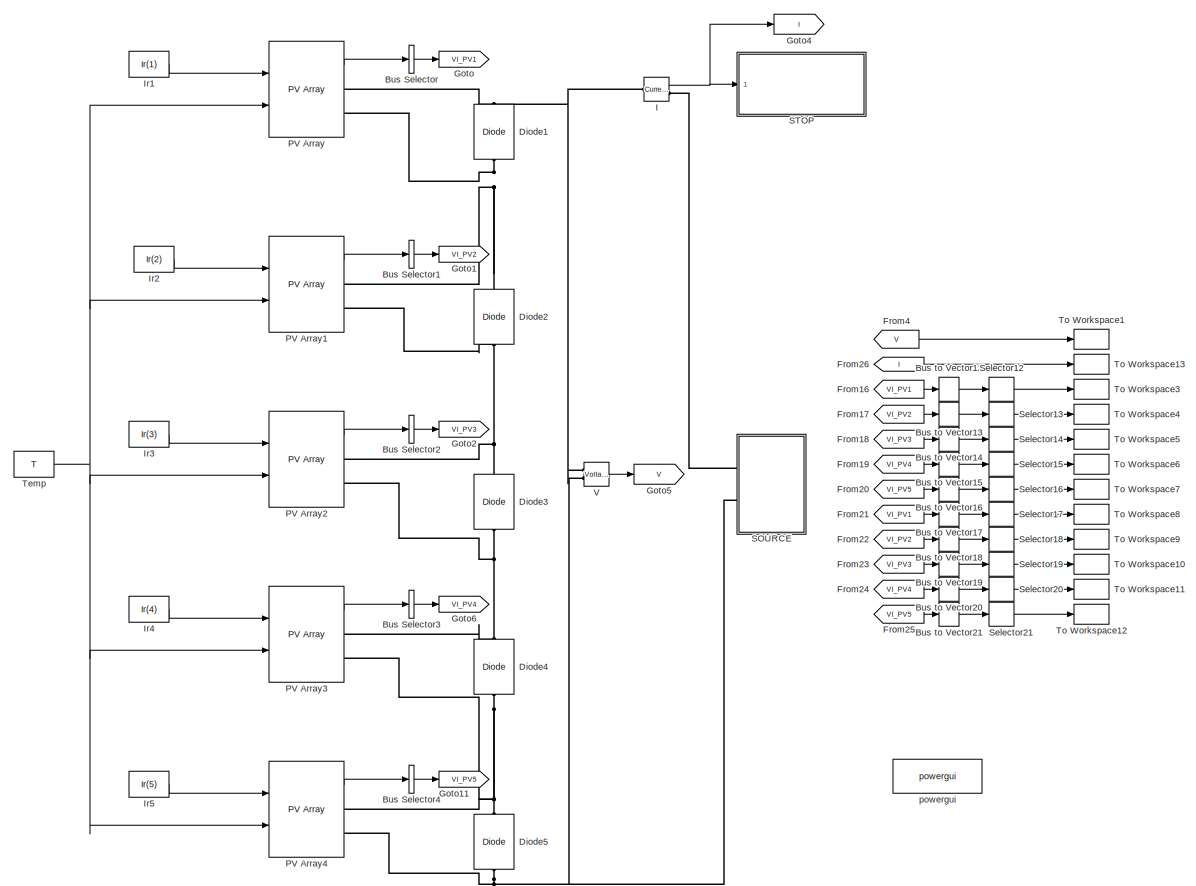
[diagram: root canvas - part 1/2, left side, full height]
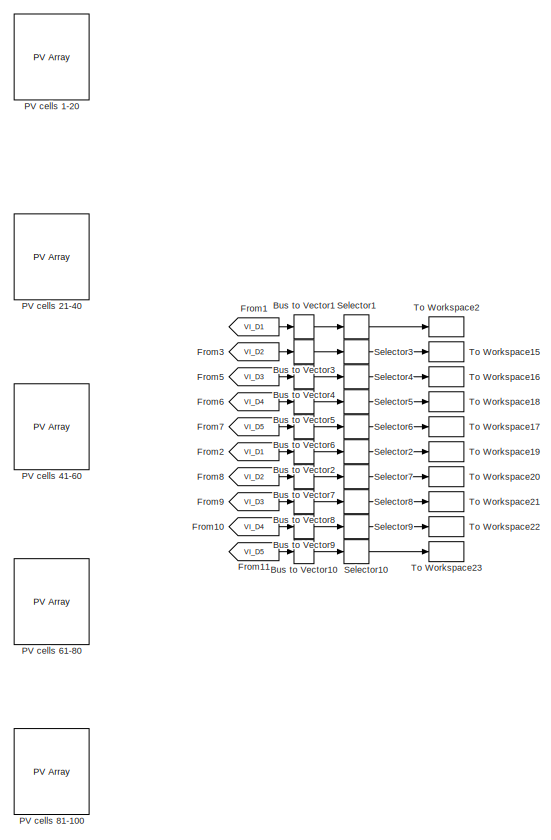
[diagram: root canvas - part 2/2, right side, full height]
MODEL slx_db8f63a1a757
KIND model
CONFIG AbsTol = auto
CONFIG EnableMultiTasking = off
CONFIG FixedStep = Ts_Power
CONFIG MaxStep = 1e-6
CONFIG MinStep = auto
CONFIG RelTol = 1e-4
CONFIG SampleTimeConstraint = Unconstrained
CONFIG SolverName = VariableStepAuto
CONFIG StartTime = 0.0
CONFIG StopFcn = VI_generator()
CONFIG StopTime = 50
BLOCK [BusSelector] Bus Selector
  NameLocation = top
  OutputAsBus = on
  OutputSignals = V_PV,I_PV
  Ports = [1, 1]
BLOCK [BusSelector] Bus Selector1
  OutputAsBus = on
  OutputSignals = V_PV,I_PV
  Ports = [1, 1]
BLOCK [BusSelector] Bus Selector2
  OutputAsBus = on
  OutputSignals = V_PV,I_PV
  Ports = [1, 1]
BLOCK [BusSelector] Bus Selector3
  OutputAsBus = on
  OutputSignals = V_PV,I_PV
  Ports = [1, 1]
BLOCK [BusSelector] Bus Selector4
  OutputAsBus = on
  OutputSignals = V_PV,I_PV
  Ports = [1, 1]
BLOCK [BusToVector] Bus to Vector1
  Commented = on
BLOCK [BusToVector] Bus to Vector10
  Commented = on
BLOCK [BusToVector] Bus to Vector12
BLOCK [BusToVector] Bus to Vector13
BLOCK [BusToVector] Bus to Vector14
BLOCK [BusToVector] Bus to Vector15
BLOCK [BusToVector] Bus to Vector16
BLOCK [BusToVector] Bus to Vector17
BLOCK [BusToVector] Bus to Vector18
BLOCK [BusToVector] Bus to Vector19
BLOCK [BusToVector] Bus to Vector2
  Commented = on
BLOCK [BusToVector] Bus to Vector20
BLOCK [BusToVector] Bus to Vector21
BLOCK [BusToVector] Bus to Vector3
  Commented = on
BLOCK [BusToVector] Bus to Vector4
  Commented = on
BLOCK [BusToVector] Bus to Vector5
  Commented = on
BLOCK [BusToVector] Bus to Vector6
  Commented = on
BLOCK [BusToVector] Bus to Vector7
  Commented = on
BLOCK [BusToVector] Bus to Vector8
  Commented = on
BLOCK [BusToVector] Bus to Vector9
  Commented = on
BLOCK [Reference] Diode1  REF=spsDiodeLib/Diode
  NameLocation = right
  Ports = [0, 0, 0, 0, 0, 1, 1]
  SourceBlock = spsDiodeLib/Diode
  SourceProductBaseCode = PS
  SourceType = Diode
BLOCK [Reference] Diode2  REF=spsDiodeLib/Diode
  NameLocation = right
  Ports = [0, 0, 0, 0, 0, 1, 1]
  SourceBlock = spsDiodeLib/Diode
  SourceProductBaseCode = PS
  SourceType = Diode
BLOCK [Reference] Diode3  REF=spsDiodeLib/Diode
  NameLocation = right
  Ports = [0, 0, 0, 0, 0, 1, 1]
  SourceBlock = spsDiodeLib/Diode
  SourceProductBaseCode = PS
  SourceType = Diode
BLOCK [Reference] Diode4  REF=spsDiodeLib/Diode
  NameLocation = right
  Ports = [0, 0, 0, 0, 0, 1, 1]
  SourceBlock = spsDiodeLib/Diode
  SourceProductBaseCode = PS
  SourceType = Diode
BLOCK [Reference] Diode5  REF=spsDiodeLib/Diode
  NameLocation = right
  Ports = [0, 0, 0, 0, 0, 1, 1]
  SourceBlock = spsDiodeLib/Diode
  SourceProductBaseCode = PS
  SourceType = Diode
BLOCK [From] From1
  Commented = on
  GotoTag = VI_D1
BLOCK [From] From10
  Commented = on
  GotoTag = VI_D4
BLOCK [From] From11
  Commented = on
  GotoTag = VI_D5
BLOCK [From] From16
  GotoTag = VI_PV1
BLOCK [From] From17
  GotoTag = VI_PV2
BLOCK [From] From18
  GotoTag = VI_PV3
BLOCK [From] From19
  GotoTag = VI_PV4
BLOCK [From] From2
  Commented = on
  GotoTag = VI_D1
BLOCK [From] From20
  GotoTag = VI_PV5
BLOCK [From] From21
  GotoTag = VI_PV1
BLOCK [From] From22
  GotoTag = VI_PV2
BLOCK [From] From23
  GotoTag = VI_PV3
BLOCK [From] From24
  GotoTag = VI_PV4
BLOCK [From] From25
  GotoTag = VI_PV5
BLOCK [From] From26
  GotoTag = I
BLOCK [From] From3
  Commented = on
  GotoTag = VI_D2
BLOCK [From] From4
  GotoTag = V
BLOCK [From] From5
  Commented = on
  GotoTag = VI_D3
BLOCK [From] From6
  Commented = on
  GotoTag = VI_D4
BLOCK [From] From7
  Commented = on
  GotoTag = VI_D5
BLOCK [From] From8
  Commented = on
  GotoTag = VI_D2
BLOCK [From] From9
  Commented = on
  GotoTag = VI_D3
BLOCK [Goto] Goto
  GotoTag = VI_PV1
  NameLocation = top
BLOCK [Goto] Goto1
  GotoTag = VI_PV2
BLOCK [Goto] Goto11
  GotoTag = VI_PV5
BLOCK [Goto] Goto2
  GotoTag = VI_PV3
BLOCK [Goto] Goto4
  GotoTag = I
BLOCK [Goto] Goto5
  GotoTag = V
BLOCK [Goto] Goto6
  GotoTag = VI_PV4
BLOCK [Reference] I  REF=spsCurrentMeasurementLib/Current Measurement
  Ports = [0, 1, 0, 0, 0, 1, 1]
  SourceBlock = spsCurrentMeasurementLib/Current Measurement
  SourceProductBaseCode = PS
  SourceType = Current Measurement
  UserDataPersistent = on
BLOCK [Constant] Ir1
  NameLocation = top
  Value = Ir(1)
BLOCK [Constant] Ir2
  NameLocation = top
  Value = Ir(2)
BLOCK [Constant] Ir3
  NameLocation = top
  Value = Ir(3)
BLOCK [Constant] Ir4
  NameLocation = top
  Value = Ir(4)
BLOCK [Constant] Ir5
  NameLocation = top
  Value = Ir(5)
BLOCK [Reference] PV Array  REF=spsPVArrayLib/PV Array
  Ports = [2, 1, 0, 0, 0, 0, 2]
  SourceBlock = spsPVArrayLib/PV Array
  SourceProductBaseCode = PS
  SourceType = PV array
BLOCK [Reference] PV Array1  REF=spsPVArrayLib/PV Array
  Ports = [2, 1, 0, 0, 0, 0, 2]
  SourceBlock = spsPVArrayLib/PV Array
  SourceProductBaseCode = PS
  SourceType = PV array
BLOCK [Reference] PV Array2  REF=spsPVArrayLib/PV Array
  Ports = [2, 1, 0, 0, 0, 0, 2]
  SourceBlock = spsPVArrayLib/PV Array
  SourceProductBaseCode = PS
  SourceType = PV array
BLOCK [Reference] PV Array3  REF=spsPVArrayLib/PV Array
  Ports = [2, 1, 0, 0, 0, 0, 2]
  SourceBlock = spsPVArrayLib/PV Array
  SourceProductBaseCode = PS
  SourceType = PV array
BLOCK [Reference] PV Array4  REF=spsPVArrayLib/PV Array
  Ports = [2, 1, 0, 0, 0, 0, 2]
  SourceBlock = spsPVArrayLib/PV Array
  SourceProductBaseCode = PS
  SourceType = PV array
BLOCK [Reference] PV cells 1-20  REF=spsPVArrayLib/PV Array
  Commented = on
  Ports = [2, 1, 0, 0, 0, 0, 2]
  SourceBlock = spsPVArrayLib/PV Array
  SourceProductBaseCode = PS
  SourceType = PV array
BLOCK [Reference] PV cells 21-40  REF=spsPVArrayLib/PV Array
  Commented = on
  Ports = [2, 1, 0, 0, 0, 0, 2]
  SourceBlock = spsPVArrayLib/PV Array
  SourceProductBaseCode = PS
  SourceType = PV array
BLOCK [Reference] PV cells 41-60  REF=spsPVArrayLib/PV Array
  Commented = on
  Ports = [2, 1, 0, 0, 0, 0, 2]
  SourceBlock = spsPVArrayLib/PV Array
  SourceProductBaseCode = PS
  SourceType = PV array
BLOCK [Reference] PV cells 61-80  REF=spsPVArrayLib/PV Array
  Commented = on
  Ports = [2, 1, 0, 0, 0, 0, 2]
  SourceBlock = spsPVArrayLib/PV Array
  SourceProductBaseCode = PS
  SourceType = PV array
BLOCK [Reference] PV cells 81-100  REF=spsPVArrayLib/PV Array
  Commented = on
  Ports = [2, 1, 0, 0, 0, 0, 2]
  SourceBlock = spsPVArrayLib/PV Array
  SourceProductBaseCode = PS
  SourceType = PV array
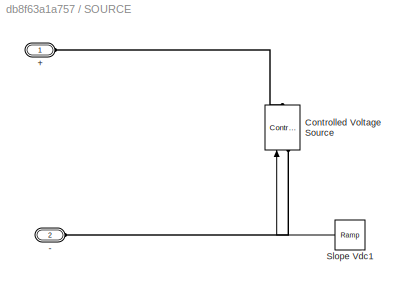
BLOCK [SubSystem] SOURCE
  Ports = [0, 0, 0, 0, 0, 2]
  RequestExecContextInheritance = off
BLOCK [PMIOPort] SOURCE/+
  Side = Left
BLOCK [PMIOPort] SOURCE/-
  Port = 2
  Side = Left
BLOCK [Reference] SOURCE/Controlled Voltage Source  REF=spsControlledVoltageSourceLib/Controlled Voltage Source
  NameLocation = right
  Ports = [1, 0, 0, 0, 0, 1, 1]
  SourceBlock = spsControlledVoltageSourceLib/Controlled Voltage Source
  SourceProductBaseCode = PS
  SourceType = Controlled Voltage Source
BLOCK [Reference] SOURCE/Slope Vdc1  REF=simulink/Sources/Ramp
  NameLocation = top
  Ports = [0, 1]
  SourceBlock = simulink/Sources/Ramp
  SourceProductBaseCode = SL
  SourceType = Ramp
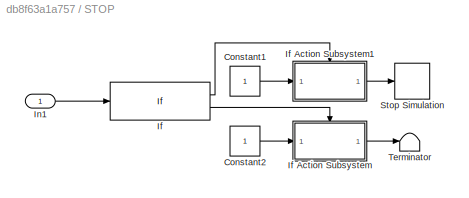
BLOCK [SubSystem] STOP
  Ports = [1]
  RequestExecContextInheritance = off
BLOCK [Constant] STOP/Constant1
BLOCK [Constant] STOP/Constant2
BLOCK [If] STOP/If
  IfExpression = u1 < 0
  Ports = [1, 2]
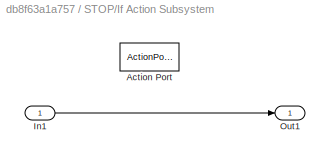
BLOCK [SubSystem] STOP/If Action Subsystem
  Ports = [1, 1, 0, 0, 0, 0, 0, 1]
  RequestExecContextInheritance = off
  TreatAsAtomicUnit = on
BLOCK [ActionPort] STOP/If Action Subsystem/Action Port
  ActionPortLabel = else
BLOCK [Inport] STOP/If Action Subsystem/In1
BLOCK [Outport] STOP/If Action Subsystem/Out1
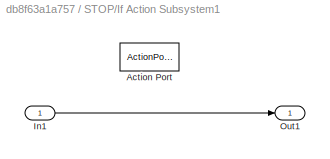
BLOCK [SubSystem] STOP/If Action Subsystem1
  Ports = [1, 1, 0, 0, 0, 0, 0, 1]
  RequestExecContextInheritance = off
  TreatAsAtomicUnit = on
BLOCK [ActionPort] STOP/If Action Subsystem1/Action Port
  ActionPortLabel = if(u1 < 0)
BLOCK [Inport] STOP/If Action Subsystem1/In1
BLOCK [Outport] STOP/If Action Subsystem1/Out1
BLOCK [Inport] STOP/In1
BLOCK [Stop] STOP/Stop Simulation
BLOCK [Terminator] STOP/Terminator
BLOCK [Selector] Selector1
  Commented = on
  IndexOptions = Index vector (dialog)
  Indices = [1]
  InputPortWidth = 2
  OutputSizes = 1
  Ports = [1, 1]
BLOCK [Selector] Selector10
  Commented = on
  IndexOptions = Index vector (dialog)
  Indices = 2
  InputPortWidth = 2
  OutputSizes = 1
  Ports = [1, 1]
BLOCK [Selector] Selector12
  IndexOptions = Index vector (dialog)
  Indices = [1]
  InputPortWidth = 2
  OutputSizes = 1
  Ports = [1, 1]
BLOCK [Selector] Selector13
  IndexOptions = Index vector (dialog)
  Indices = [1]
  InputPortWidth = 2
  OutputSizes = 1
  Ports = [1, 1]
BLOCK [Selector] Selector14
  IndexOptions = Index vector (dialog)
  Indices = [1]
  InputPortWidth = 2
  OutputSizes = 1
  Ports = [1, 1]
BLOCK [Selector] Selector15
  IndexOptions = Index vector (dialog)
  Indices = [1]
  InputPortWidth = 2
  OutputSizes = 1
  Ports = [1, 1]
BLOCK [Selector] Selector16
  IndexOptions = Index vector (dialog)
  Indices = [1]
  InputPortWidth = 2
  OutputSizes = 1
  Ports = [1, 1]
BLOCK [Selector] Selector17
  IndexOptions = Index vector (dialog)
  Indices = 2
  InputPortWidth = 2
  OutputSizes = 1
  Ports = [1, 1]
BLOCK [Selector] Selector18
  IndexOptions = Index vector (dialog)
  Indices = 2
  InputPortWidth = 2
  OutputSizes = 1
  Ports = [1, 1]
BLOCK [Selector] Selector19
  IndexOptions = Index vector (dialog)
  Indices = 2
  InputPortWidth = 2
  OutputSizes = 1
  Ports = [1, 1]
BLOCK [Selector] Selector2
  Commented = on
  IndexOptions = Index vector (dialog)
  Indices = 2
  InputPortWidth = 2
  OutputSizes = 1
  Ports = [1, 1]
BLOCK [Selector] Selector20
  IndexOptions = Index vector (dialog)
  Indices = 2
  InputPortWidth = 2
  OutputSizes = 1
  Ports = [1, 1]
BLOCK [Selector] Selector21
  IndexOptions = Index vector (dialog)
  Indices = 2
  InputPortWidth = 2
  OutputSizes = 1
  Ports = [1, 1]
BLOCK [Selector] Selector3
  Commented = on
  IndexOptions = Index vector (dialog)
  Indices = [1]
  InputPortWidth = 2
  OutputSizes = 1
  Ports = [1, 1]
BLOCK [Selector] Selector4
  Commented = on
  IndexOptions = Index vector (dialog)
  Indices = [1]
  InputPortWidth = 2
  OutputSizes = 1
  Ports = [1, 1]
BLOCK [Selector] Selector5
  Commented = on
  IndexOptions = Index vector (dialog)
  Indices = [1]
  InputPortWidth = 2
  OutputSizes = 1
  Ports = [1, 1]
BLOCK [Selector] Selector6
  Commented = on
  IndexOptions = Index vector (dialog)
  Indices = [1]
  InputPortWidth = 2
  OutputSizes = 1
  Ports = [1, 1]
BLOCK [Selector] Selector7
  Commented = on
  IndexOptions = Index vector (dialog)
  Indices = 2
  InputPortWidth = 2
  OutputSizes = 1
  Ports = [1, 1]
BLOCK [Selector] Selector8
  Commented = on
  IndexOptions = Index vector (dialog)
  Indices = 2
  InputPortWidth = 2
  OutputSizes = 1
  Ports = [1, 1]
BLOCK [Selector] Selector9
  Commented = on
  IndexOptions = Index vector (dialog)
  Indices = 2
  InputPortWidth = 2
  OutputSizes = 1
  Ports = [1, 1]
BLOCK [Constant] Temp
  Value = T
BLOCK [ToWorkspace] To Workspace1
  FixptAsFi = on
  MaxDataPoints = inf
  Ports = [1]
  SampleTime = 1e-3
  VariableName = V
BLOCK [ToWorkspace] To Workspace10
  FixptAsFi = on
  MaxDataPoints = inf
  Ports = [1]
  SampleTime = 1e-3
  VariableName = I3
BLOCK [ToWorkspace] To Workspace11
  FixptAsFi = on
  MaxDataPoints = inf
  Ports = [1]
  SampleTime = 1e-3
  VariableName = I4
BLOCK [ToWorkspace] To Workspace12
  FixptAsFi = on
  MaxDataPoints = inf
  Ports = [1]
  SampleTime = 1e-3
  VariableName = I5
BLOCK [ToWorkspace] To Workspace13
  FixptAsFi = on
  MaxDataPoints = inf
  Ports = [1]
  SampleTime = 1e-3
  VariableName = I
BLOCK [ToWorkspace] To Workspace15
  Commented = on
  FixptAsFi = on
  MaxDataPoints = inf
  Ports = [1]
  SampleTime = 1e-3
  VariableName = VD2
BLOCK [ToWorkspace] To Workspace16
  Commented = on
  FixptAsFi = on
  MaxDataPoints = inf
  Ports = [1]
  SampleTime = 1e-3
  VariableName = VD3
BLOCK [ToWorkspace] To Workspace17
  Commented = on
  FixptAsFi = on
  MaxDataPoints = inf
  Ports = [1]
  SampleTime = 1e-3
  VariableName = VD5
BLOCK [ToWorkspace] To Workspace18
  Commented = on
  FixptAsFi = on
  MaxDataPoints = inf
  Ports = [1]
  SampleTime = 1e-3
  VariableName = VD4
BLOCK [ToWorkspace] To Workspace19
  Commented = on
  FixptAsFi = on
  MaxDataPoints = inf
  Ports = [1]
  SampleTime = 1e-3
  VariableName = ID1
BLOCK [ToWorkspace] To Workspace2
  Commented = on
  FixptAsFi = on
  MaxDataPoints = inf
  Ports = [1]
  SampleTime = 1e-3
  VariableName = VD1
BLOCK [ToWorkspace] To Workspace20
  Commented = on
  FixptAsFi = on
  MaxDataPoints = inf
  Ports = [1]
  SampleTime = 1e-3
  VariableName = ID2
BLOCK [ToWorkspace] To Workspace21
  Commented = on
  FixptAsFi = on
  MaxDataPoints = inf
  Ports = [1]
  SampleTime = 1e-3
  VariableName = ID3
BLOCK [ToWorkspace] To Workspace22
  Commented = on
  FixptAsFi = on
  MaxDataPoints = inf
  Ports = [1]
  SampleTime = 1e-3
  VariableName = ID4
BLOCK [ToWorkspace] To Workspace23
  Commented = on
  FixptAsFi = on
  MaxDataPoints = inf
  Ports = [1]
  SampleTime = 1e-3
  VariableName = ID5
BLOCK [ToWorkspace] To Workspace3
  FixptAsFi = on
  MaxDataPoints = inf
  Ports = [1]
  SampleTime = 1e-3
  VariableName = V1
BLOCK [ToWorkspace] To Workspace4
  FixptAsFi = on
  MaxDataPoints = inf
  Ports = [1]
  SampleTime = 1e-3
  VariableName = V2
BLOCK [ToWorkspace] To Workspace5
  FixptAsFi = on
  MaxDataPoints = inf
  Ports = [1]
  SampleTime = 1e-3
  VariableName = V3
BLOCK [ToWorkspace] To Workspace6
  FixptAsFi = on
  MaxDataPoints = inf
  Ports = [1]
  SampleTime = 1e-3
  VariableName = V4
BLOCK [ToWorkspace] To Workspace7
  FixptAsFi = on
  MaxDataPoints = inf
  Ports = [1]
  SampleTime = 1e-3
  VariableName = V5
BLOCK [ToWorkspace] To Workspace8
  FixptAsFi = on
  MaxDataPoints = inf
  Ports = [1]
  SampleTime = 1e-3
  VariableName = I1
BLOCK [ToWorkspace] To Workspace9
  FixptAsFi = on
  MaxDataPoints = inf
  Ports = [1]
  SampleTime = 1e-3
  VariableName = I2
BLOCK [Reference] V  REF=spsVoltageMeasurementLib/Voltage Measurement
  Ports = [0, 1, 0, 0, 0, 2]
  SourceBlock = spsVoltageMeasurementLib/Voltage Measurement
  SourceProductBaseCode = PS
  SourceType = Voltage Measurement
  UserDataPersistent = on
BLOCK [Reference] powergui  REF=spspowerguiLib/powergui
  Ports = []
  Priority = 1
  SourceBlock = spspowerguiLib/powergui
  SourceProductBaseCode = PS
  SourceType = PSB option menu block
LINE Bus Selector1:1 -> Goto1:1
LINE Bus Selector2:1 -> Goto2:1
LINE Bus Selector3:1 -> Goto6:1
LINE Bus Selector4:1 -> Goto11:1
LINE Bus Selector:1 -> Goto:1
LINE Bus to Vector10:1 -> Selector10:1
LINE Bus to Vector12:1 -> Selector12:1
LINE Bus to Vector13:1 -> Selector13:1
LINE Bus to Vector14:1 -> Selector14:1
LINE Bus to Vector15:1 -> Selector15:1
LINE Bus to Vector16:1 -> Selector16:1
LINE Bus to Vector17:1 -> Selector17:1
LINE Bus to Vector18:1 -> Selector18:1
LINE Bus to Vector19:1 -> Selector19:1
LINE Bus to Vector1:1 -> Selector1:1
LINE Bus to Vector20:1 -> Selector20:1
LINE Bus to Vector21:1 -> Selector21:1
LINE Bus to Vector2:1 -> Selector2:1
LINE Bus to Vector3:1 -> Selector3:1
LINE Bus to Vector4:1 -> Selector4:1
LINE Bus to Vector5:1 -> Selector5:1
LINE Bus to Vector6:1 -> Selector6:1
LINE Bus to Vector7:1 -> Selector7:1
LINE Bus to Vector8:1 -> Selector8:1
LINE Bus to Vector9:1 -> Selector9:1
LINE From10:1 -> Bus to Vector9:1
LINE From11:1 -> Bus to Vector10:1
LINE From16:1 -> Bus to Vector12:1
LINE From17:1 -> Bus to Vector13:1
LINE From18:1 -> Bus to Vector14:1
LINE From19:1 -> Bus to Vector15:1
LINE From1:1 -> Bus to Vector1:1
LINE From20:1 -> Bus to Vector16:1
LINE From21:1 -> Bus to Vector17:1
LINE From22:1 -> Bus to Vector18:1
LINE From23:1 -> Bus to Vector19:1
LINE From24:1 -> Bus to Vector20:1
LINE From25:1 -> Bus to Vector21:1
LINE From26:1 -> To Workspace13:1
LINE From2:1 -> Bus to Vector2:1
LINE From3:1 -> Bus to Vector3:1
LINE From4:1 -> To Workspace1:1
LINE From5:1 -> Bus to Vector4:1
LINE From6:1 -> Bus to Vector5:1
LINE From7:1 -> Bus to Vector6:1
LINE From8:1 -> Bus to Vector7:1
LINE From9:1 -> Bus to Vector8:1
NET I:1 -> Goto4:1, STOP:1
LINE Ir1:1 -> PV Array:1
LINE Ir2:1 -> PV Array1:1
LINE Ir3:1 -> PV Array2:1
LINE Ir4:1 -> PV Array3:1
LINE Ir5:1 -> PV Array4:1
LINE PV Array1:1 -> Bus Selector1:1
LINE PV Array2:1 -> Bus Selector2:1
LINE PV Array3:1 -> Bus Selector3:1
LINE PV Array4:1 -> Bus Selector4:1
LINE PV Array:1 -> Bus Selector:1
LINE SOURCE/Slope Vdc1:1 -> SOURCE/Controlled Voltage Source:1
LINE STOP/Constant1:1 -> STOP/If Action Subsystem1:1
LINE STOP/Constant2:1 -> STOP/If Action Subsystem:1
LINE STOP/If Action Subsystem/In1:1 -> STOP/If Action Subsystem/Out1:1
LINE STOP/If Action Subsystem1/In1:1 -> STOP/If Action Subsystem1/Out1:1
LINE STOP/If Action Subsystem1:1 -> STOP/Stop Simulation:1
LINE STOP/If Action Subsystem:1 -> STOP/Terminator:1
LINE STOP/If:1 -> STOP/If Action Subsystem1:ifaction
LINE STOP/If:2 -> STOP/If Action Subsystem:ifaction
LINE STOP/In1:1 -> STOP/If:1
LINE Selector10:1 -> To Workspace23:1
LINE Selector12:1 -> To Workspace3:1
LINE Selector13:1 -> To Workspace4:1
LINE Selector14:1 -> To Workspace5:1
LINE Selector15:1 -> To Workspace6:1
LINE Selector16:1 -> To Workspace7:1
LINE Selector17:1 -> To Workspace8:1
LINE Selector18:1 -> To Workspace9:1
LINE Selector19:1 -> To Workspace10:1
LINE Selector1:1 -> To Workspace2:1
LINE Selector20:1 -> To Workspace11:1
LINE Selector21:1 -> To Workspace12:1
LINE Selector2:1 -> To Workspace19:1
LINE Selector3:1 -> To Workspace15:1
LINE Selector4:1 -> To Workspace16:1
LINE Selector5:1 -> To Workspace18:1
LINE Selector6:1 -> To Workspace17:1
LINE Selector7:1 -> To Workspace20:1
LINE Selector8:1 -> To Workspace21:1
LINE Selector9:1 -> To Workspace22:1
NET Temp:1 -> PV Array1:2, PV Array2:2, PV Array3:2, PV Array4:2, PV Array:2
LINE V:1 -> Goto5:1
PNET net1: Diode1:LConn1 -- Diode2:RConn1 -- PV Array1:RConn1 -- PV Array:RConn2
PNET net2: Diode1:RConn1 -- I:LConn1 -- PV Array:RConn1 -- V:LConn1
PNET net3: Diode2:LConn1 -- Diode3:RConn1 -- PV Array1:RConn2 -- PV Array2:RConn1
PNET net4: Diode3:LConn1 -- Diode4:RConn1 -- PV Array2:RConn2 -- PV Array3:RConn1
PNET net5: Diode4:LConn1 -- Diode5:RConn1 -- PV Array3:RConn2 -- PV Array4:RConn1
PNET net6: Diode5:LConn1 -- PV Array4:RConn2 -- SOURCE:LConn2 -- V:LConn2
PLINE I:RConn1 -- SOURCE:LConn1
PLINE SOURCE/+:RConn1 -- SOURCE/Controlled Voltage Source:RConn1
PLINE SOURCE/-:RConn1 -- SOURCE/Controlled Voltage Source:LConn1
note: NET lines group one-source signal fan-out (src -> all destinations, sorted); 1:1 wires keep LINE; PNET lines group multi-terminal physical nets as a canonical sorted terminal list (undirected conserving connections); 2-terminal nets keep the pairwise PLINE form
